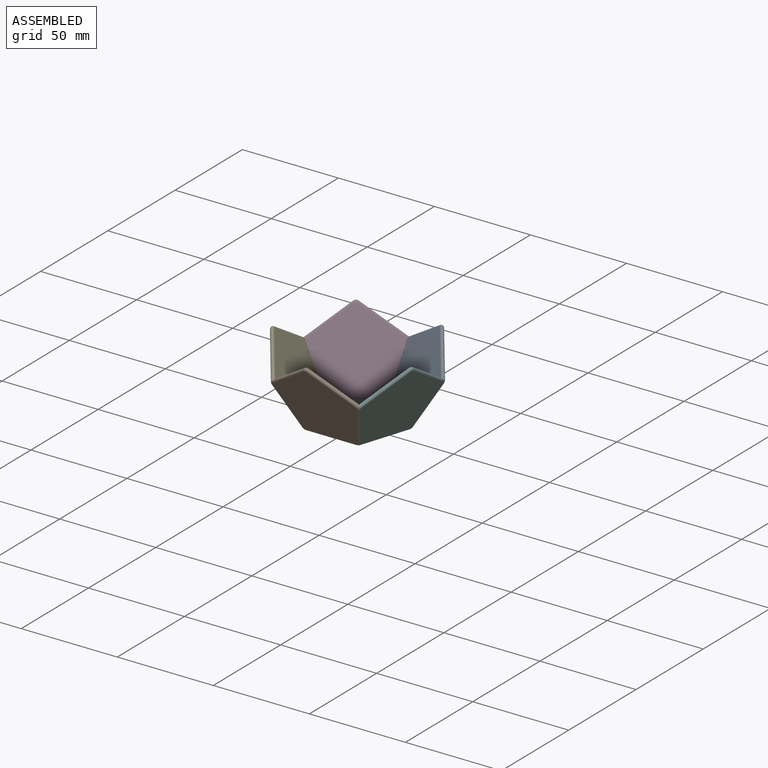
[diagram: assembled view]
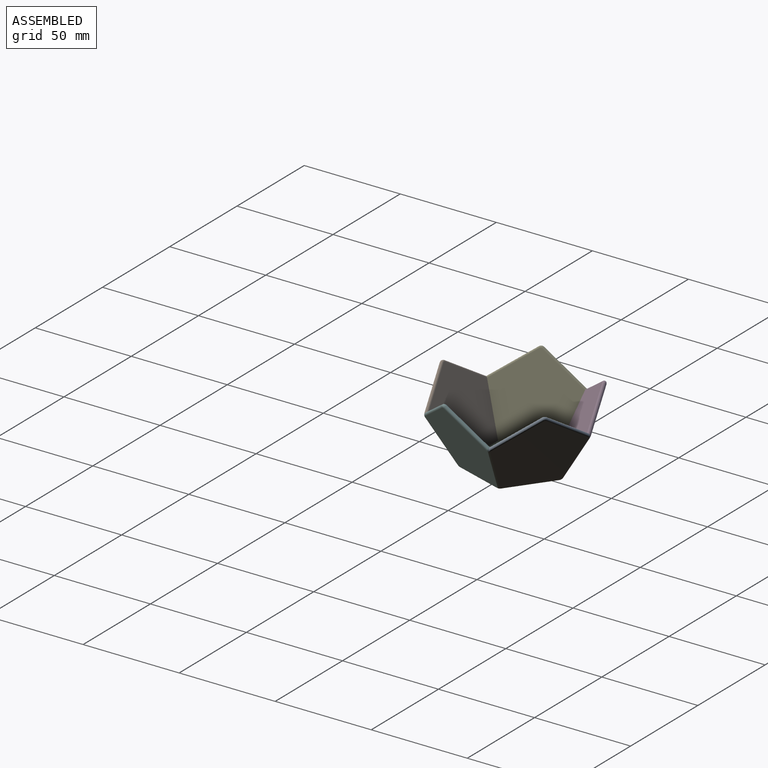
[diagram: assembled view, second angle]
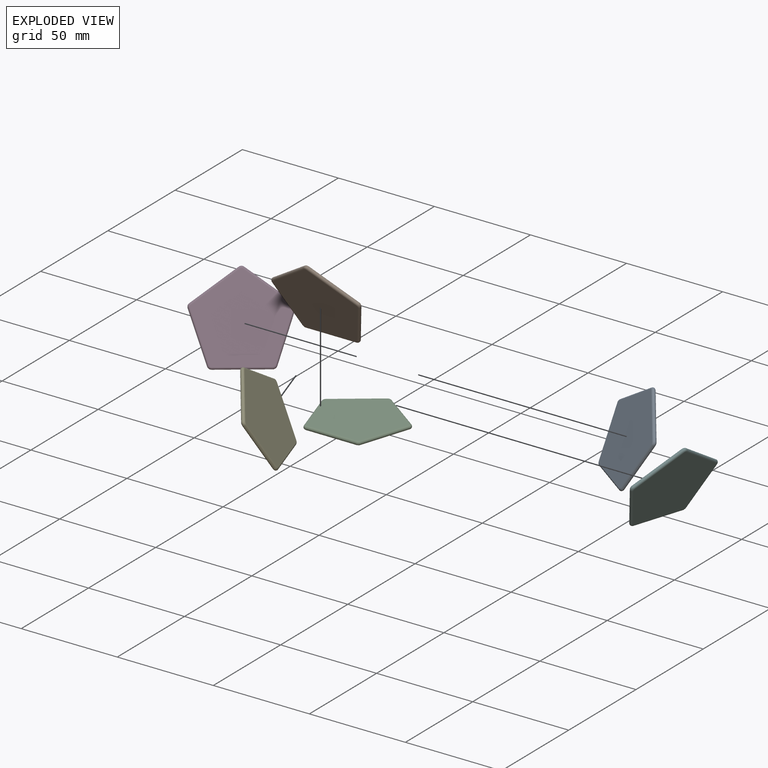
[diagram: exploded view]
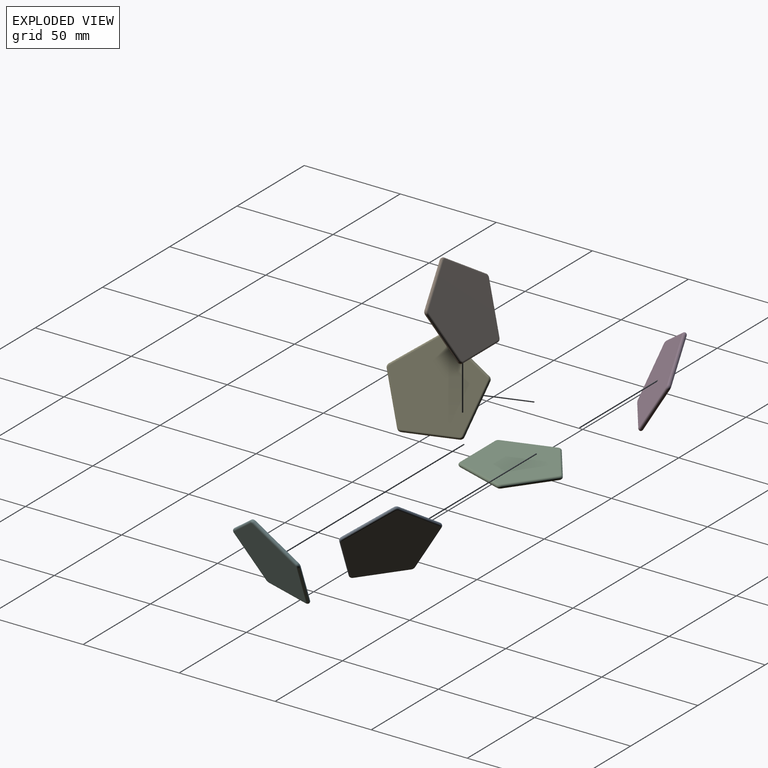
[diagram: exploded view, second angle]
ASSEMBLY  parts=6 mates=6
PART A: 12 faces, bbox 46.7x44.6x2 mm
  f0: plane 44.32x42.25mm, normal (0,0,1), area 1310.9mm2, adj f2,f3,f4,f5,f6,f7,f8,f9
  f1: plane 44.32x42.25mm, normal (0,0,-1), area 1310.9mm2, adj f2,f3,f4,f5,f6,f7,f8,f9
  f2: cylinder r=1mm len=26.16mm, axis (1,0,0), area 82.2mm2, adj f0,f1,f3,f4
  f3: torus R=1mm, axis (0,0,1), area 6.5mm2, adj f0,f1,f2,f5
  f4: torus R=1mm, axis (0,0,1), area 6.5mm2, adj f0,f1,f2,f6
  f5: cylinder r=1mm len=25.18mm, axis (0.31,0.95,0), area 82.2mm2, adj f0,f1,f3,f7
  f6: cylinder r=1mm len=25.18mm, axis (0.31,-0.95,0), area 82.2mm2, adj f0,f1,f4,f8
  f7: torus R=1mm, axis (0,0,1), area 6.5mm2, adj f0,f1,f5,f9
  f8: torus R=1mm, axis (0,0,1), area 6.5mm2, adj f0,f1,f6,f10
  f9: cylinder r=1mm len=21.75mm, axis (-0.81,0.59,0), area 82.2mm2, adj f0,f1,f7,f11
  f10: cylinder r=1mm len=21.75mm, axis (-0.81,-0.59,0), area 82.2mm2, adj f0,f1,f8,f11
  f11: torus R=1mm, axis (0,0,1), area 6.5mm2, adj f0,f1,f9,f10
PART B: same geometry as A
PART C: same geometry as A
PART D: same geometry as A
PART E: same geometry as A
PART F: same geometry as A
PLACE A rot(axis=(0.85,-0.28,-0.45),72deg) t=(16.16,22.25,16.99)mm
PLACE B rot(axis=(-0.85,0.28,0.45),72deg) t=(0,-27.5,16.99)mm
PLACE C at identity fixed
PLACE D rot(axis=(-0.94,0,0.34),129.7deg) t=(-16.16,22.25,16.99)mm
PLACE E rot(axis=(0,0.89,0.45),72deg) t=(-26.15,-8.5,16.99)mm
PLACE F rot(axis=(0.76,0.55,0.34),129.7deg) t=(26.15,-8.5,16.99)mm
MATE revolute F.f6 <-> B.f5  axis (-0.31,0.43,-0.85) through (18.07,-24.87,11.74)mm
MATE revolute C.f10 <-> D.f9  axis (-0.81,-0.59,0) through (-11.17,15.37,0)mm
MATE revolute C.f5 <-> F.f2  axis (0.31,0.95,0) through (18.07,-5.87,0)mm
MATE revolute C.f6 <-> E.f5  axis (0.31,-0.95,0) through (-18.07,-5.87,0)mm
MATE revolute C.f2 <-> B.f9  axis (1,0,0) through (0,-19,0)mm
MATE revolute C.f9 <-> A.f2  axis (-0.81,0.59,0) through (11.17,15.37,0)mm
